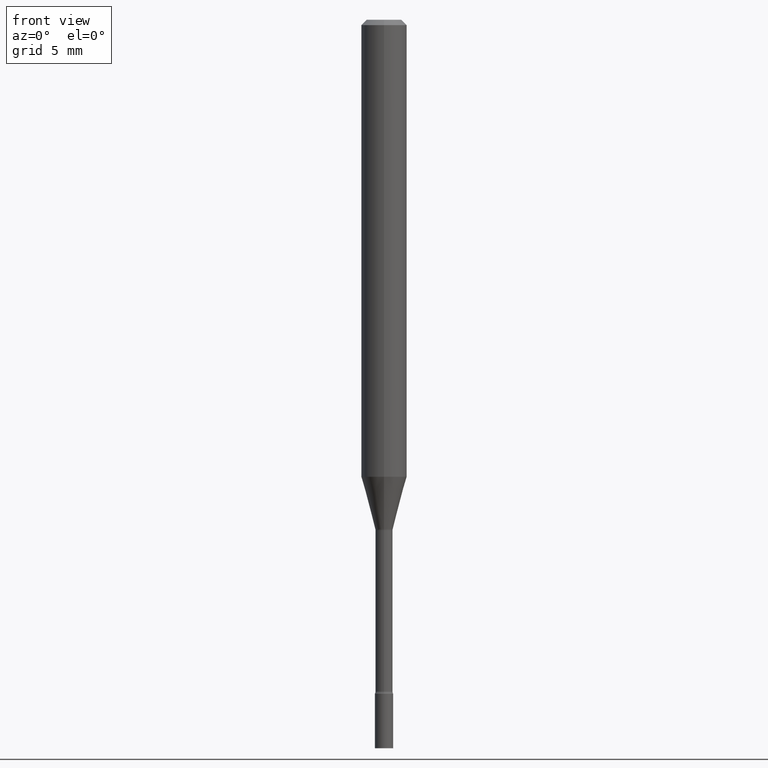
[diagram: clean part render]
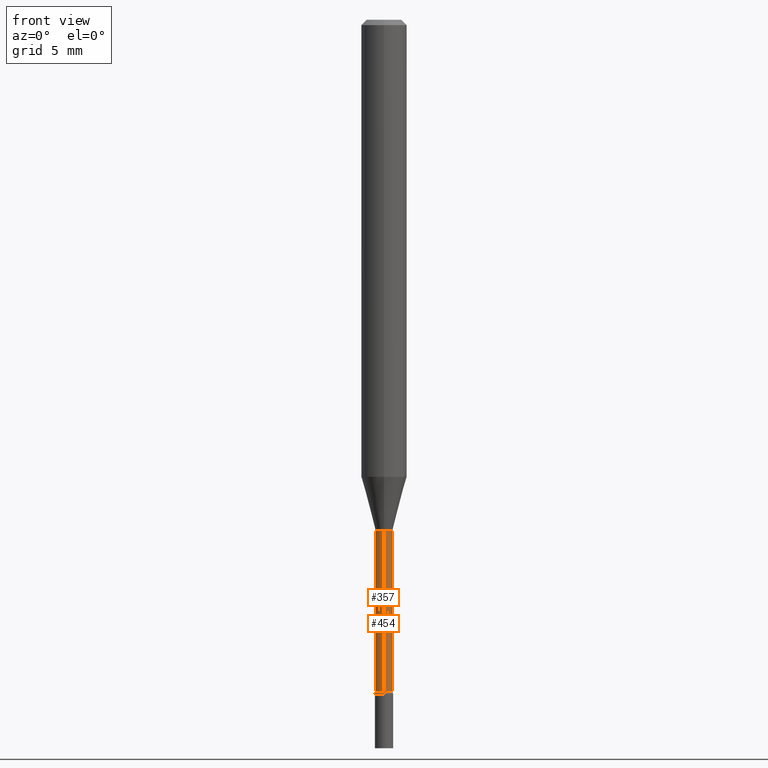
[diagram: same view with one multi-face feature highlighted, each face labeled with its STEP entity id]
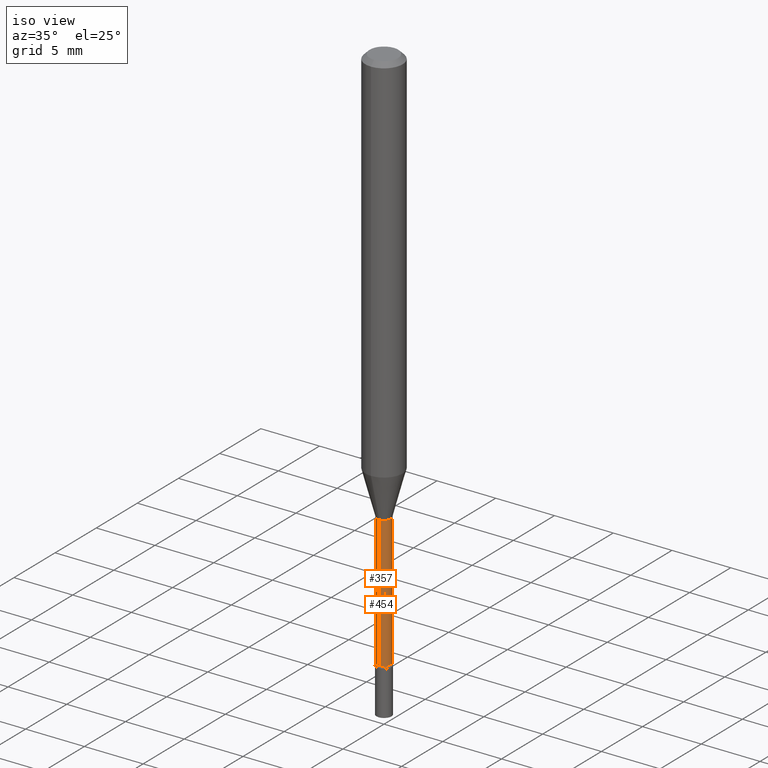
[diagram: same view with one multi-face feature highlighted, each face labeled with its STEP entity id]
A machine part, front view. The highlighted faces form ONE feature: a constant-radius fillet chain: 2 tangent blend faces with common blend radius 0.5969 mm. The faces share edges in the B-rep.
A second angle (iso view) of the same feature is appended — it is thin or edge-on in the first view.
Their STEP definitions:
[1] entity #454 (Cylinder):
#7 = FACE_OUTER_BOUND ( 'NONE', #139, .T. ) ;
#45 = VERTEX_POINT ( 'NONE', #50 ) ;
#50 = CARTESIAN_POINT ( 'NONE',  ( -1.640996229255930104E-16, -0.02350000000000489891, -1.401974787463811101 ) ) ;
#61 = VERTEX_POINT ( 'NONE', #177 ) ;
#69 = DIRECTION ( 'NONE',  ( -2.445460790589413958E-29, 3.491492817632440030E-15, 1.000000000000000000 ) ) ;
#72 = CARTESIAN_POINT ( 'NONE',  ( -1.640996229256275231E-16, -0.02350000000000003475, 8.205008121436246387E-17 ) ) ;
#74 = VERTEX_POINT ( 'NONE', #470 ) ;
#86 = EDGE_CURVE ( 'NONE', #61, #74, #466, .T. ) ;
#92 = AXIS2_PLACEMENT_3D ( 'NONE', #374, #408, #376 ) ;
#128 = CARTESIAN_POINT ( 'NONE',  ( 3.428474372137676745E-29, -4.894984900931663288E-15, -1.401974787463811101 ) ) ;
#139 = EDGE_LOOP ( 'NONE', ( #403, #407, #480, #185 ) ) ;
#163 = VECTOR ( 'NONE', #365, 39.37007874015748143 ) ;
#170 = AXIS2_PLACEMENT_3D ( 'NONE', #318, #257, #442 ) ;
#177 = CARTESIAN_POINT ( 'NONE',  ( 1.723066134218696351E-16, 0.02349999999999363709, -1.843461651584689109 ) ) ;
#185 = ORIENTED_EDGE ( 'NONE', *, *, #239, .F. ) ;
#199 = CIRCLE ( 'NONE', #170, 0.02350000000000007291 ) ;
#219 = VERTEX_POINT ( 'NONE', #514 ) ;
#239 = EDGE_CURVE ( 'NONE', #219, #45, #402, .T. ) ;
#257 = DIRECTION ( 'NONE',  ( -2.445460790589413958E-29, 3.491492817632439636E-15, 1.000000000000000000 ) ) ;
#261 = CYLINDRICAL_SURFACE ( 'NONE', #92, 0.02350000000000003475 ) ;
#281 = AXIS2_PLACEMENT_3D ( 'NONE', #128, #369, #302 ) ;
#302 = DIRECTION ( 'NONE',  ( -6.982962677686265922E-15, -1.000000000000000000, 0.000000000000000000 ) ) ;
#318 = CARTESIAN_POINT ( 'NONE',  ( 4.508113187905560088E-29, -6.436433116088776925E-15, -1.843461651584689109 ) ) ;
#339 = EDGE_CURVE ( 'NONE', #219, #61, #199, .T. ) ;
#356 = CARTESIAN_POINT ( 'NONE',  ( 1.669775429036237659E-16, 0.02350000000000003475, -8.205008121436246387E-17 ) ) ;
#365 = DIRECTION ( 'NONE',  ( -2.445460790589413958E-29, 3.491492817632440030E-15, 1.000000000000000000 ) ) ;
#369 = DIRECTION ( 'NONE',  ( -2.445460790589413958E-29, 3.491492817632439636E-15, 1.000000000000000000 ) ) ;
#374 = CARTESIAN_POINT ( 'NONE',  ( 0.000000000000000000, 0.000000000000000000, 0.000000000000000000 ) ) ;
#376 = DIRECTION ( 'NONE',  ( -6.982962677686267499E-15, -1.000000000000000000, 3.491492817632440030E-15 ) ) ;
#402 = LINE ( 'NONE', #72, #163 ) ;
#403 = ORIENTED_EDGE ( 'NONE', *, *, #339, .T. ) ;
#407 = ORIENTED_EDGE ( 'NONE', *, *, #86, .T. ) ;
#408 = DIRECTION ( 'NONE',  ( -2.445460790589413958E-29, 3.491492817632439636E-15, 1.000000000000000000 ) ) ;
#409 = VECTOR ( 'NONE', #69, 39.37007874015748143 ) ;
#430 = CIRCLE ( 'NONE', #281, 0.02350000000000000352 ) ;
#442 = DIRECTION ( 'NONE',  ( -6.982962677686266711E-15, -1.000000000000000000, 0.000000000000000000 ) ) ;
#454 = ADVANCED_FACE ( 'NONE', ( #7 ), #261, .T. ) ;
#466 = LINE ( 'NONE', #356, #409 ) ;
#470 = CARTESIAN_POINT ( 'NONE',  ( 1.669775429036688050E-16, 0.02349999999999510467, -1.401974787463811101 ) ) ;
#480 = ORIENTED_EDGE ( 'NONE', *, *, #486, .F. ) ;
#486 = EDGE_CURVE ( 'NONE', #45, #74, #430, .T. ) ;
#514 = CARTESIAN_POINT ( 'NONE',  ( -1.640996229255826813E-16, -0.02350000000000651221, -1.843461651584689109 ) ) ;
[2] entity #357 (Cylinder):
#4 = EDGE_LOOP ( 'NONE', ( #366, #451, #513, #84 ) ) ;
#37 = DIRECTION ( 'NONE',  ( -6.982962677686266711E-15, -1.000000000000000000, 0.000000000000000000 ) ) ;
#40 = CARTESIAN_POINT ( 'NONE',  ( 0.000000000000000000, 0.000000000000000000, 0.000000000000000000 ) ) ;
#45 = VERTEX_POINT ( 'NONE', #50 ) ;
#50 = CARTESIAN_POINT ( 'NONE',  ( -1.640996229255930104E-16, -0.02350000000000489891, -1.401974787463811101 ) ) ;
#61 = VERTEX_POINT ( 'NONE', #177 ) ;
#69 = DIRECTION ( 'NONE',  ( -2.445460790589413958E-29, 3.491492817632440030E-15, 1.000000000000000000 ) ) ;
#72 = CARTESIAN_POINT ( 'NONE',  ( -1.640996229256275231E-16, -0.02350000000000003475, 8.205008121436246387E-17 ) ) ;
#74 = VERTEX_POINT ( 'NONE', #470 ) ;
#84 = ORIENTED_EDGE ( 'NONE', *, *, #315, .F. ) ;
#86 = EDGE_CURVE ( 'NONE', #61, #74, #466, .T. ) ;
#123 = DIRECTION ( 'NONE',  ( -6.982962677686267499E-15, -1.000000000000000000, 3.491492817632440030E-15 ) ) ;
#163 = VECTOR ( 'NONE', #365, 39.37007874015748143 ) ;
#167 = CIRCLE ( 'NONE', #198, 0.02350000000000000352 ) ;
#177 = CARTESIAN_POINT ( 'NONE',  ( 1.723066134218696351E-16, 0.02349999999999363709, -1.843461651584689109 ) ) ;
#186 = AXIS2_PLACEMENT_3D ( 'NONE', #40, #249, #123 ) ;
#198 = AXIS2_PLACEMENT_3D ( 'NONE', #208, #325, #368 ) ;
#208 = CARTESIAN_POINT ( 'NONE',  ( 3.428474372137676745E-29, -4.894984900931663288E-15, -1.401974787463811101 ) ) ;
#219 = VERTEX_POINT ( 'NONE', #514 ) ;
#239 = EDGE_CURVE ( 'NONE', #219, #45, #402, .T. ) ;
#249 = DIRECTION ( 'NONE',  ( -2.445460790589413958E-29, 3.491492817632439636E-15, 1.000000000000000000 ) ) ;
#267 = EDGE_CURVE ( 'NONE', #61, #219, #427, .T. ) ;
#315 = EDGE_CURVE ( 'NONE', #74, #45, #167, .T. ) ;
#325 = DIRECTION ( 'NONE',  ( -2.445460790589413958E-29, 3.491492817632439636E-15, 1.000000000000000000 ) ) ;
#356 = CARTESIAN_POINT ( 'NONE',  ( 1.669775429036237659E-16, 0.02350000000000003475, -8.205008121436246387E-17 ) ) ;
#357 = ADVANCED_FACE ( 'NONE', ( #440 ), #479, .T. ) ;
#360 = CARTESIAN_POINT ( 'NONE',  ( 4.508113187905560088E-29, -6.436433116088776925E-15, -1.843461651584689109 ) ) ;
#365 = DIRECTION ( 'NONE',  ( -2.445460790589413958E-29, 3.491492817632440030E-15, 1.000000000000000000 ) ) ;
#366 = ORIENTED_EDGE ( 'NONE', *, *, #86, .F. ) ;
#368 = DIRECTION ( 'NONE',  ( -6.982962677686265922E-15, -1.000000000000000000, 0.000000000000000000 ) ) ;
#397 = DIRECTION ( 'NONE',  ( -2.445460790589413958E-29, 3.491492817632439636E-15, 1.000000000000000000 ) ) ;
#402 = LINE ( 'NONE', #72, #163 ) ;
#409 = VECTOR ( 'NONE', #69, 39.37007874015748143 ) ;
#427 = CIRCLE ( 'NONE', #437, 0.02350000000000007291 ) ;
#437 = AXIS2_PLACEMENT_3D ( 'NONE', #360, #397, #37 ) ;
#440 = FACE_OUTER_BOUND ( 'NONE', #4, .T. ) ;
#451 = ORIENTED_EDGE ( 'NONE', *, *, #267, .T. ) ;
#466 = LINE ( 'NONE', #356, #409 ) ;
#470 = CARTESIAN_POINT ( 'NONE',  ( 1.669775429036688050E-16, 0.02349999999999510467, -1.401974787463811101 ) ) ;
#479 = CYLINDRICAL_SURFACE ( 'NONE', #186, 0.02350000000000003475 ) ;
#513 = ORIENTED_EDGE ( 'NONE', *, *, #239, .T. ) ;
#514 = CARTESIAN_POINT ( 'NONE',  ( -1.640996229255826813E-16, -0.02350000000000651221, -1.843461651584689109 ) ) ;